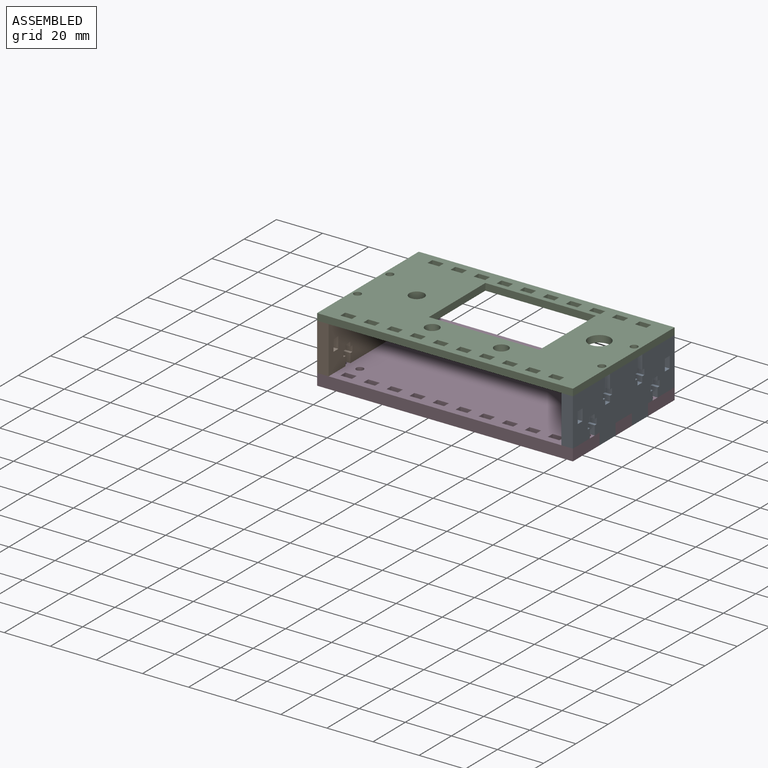
[diagram: assembled view]
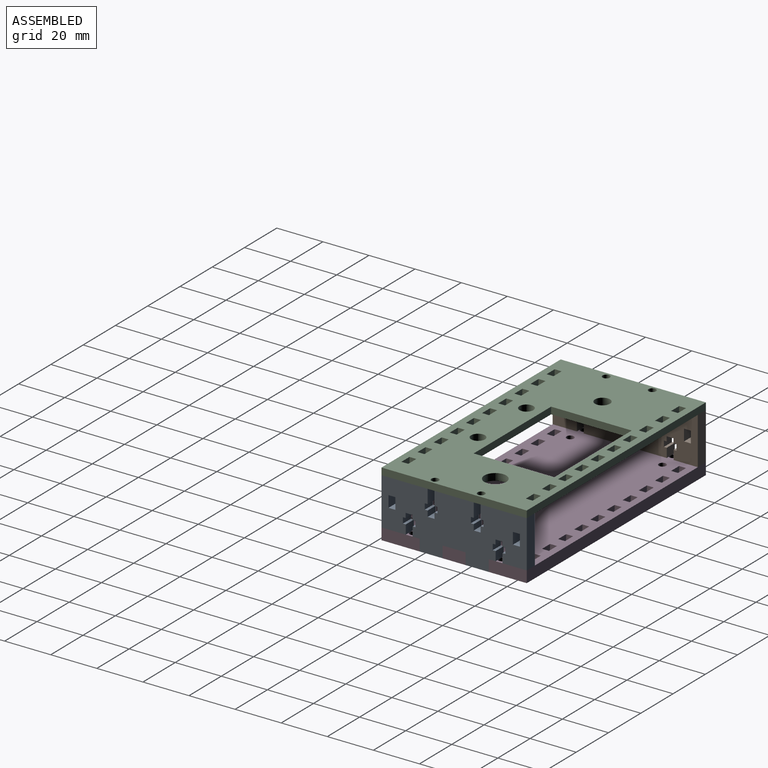
[diagram: assembled view, second angle]
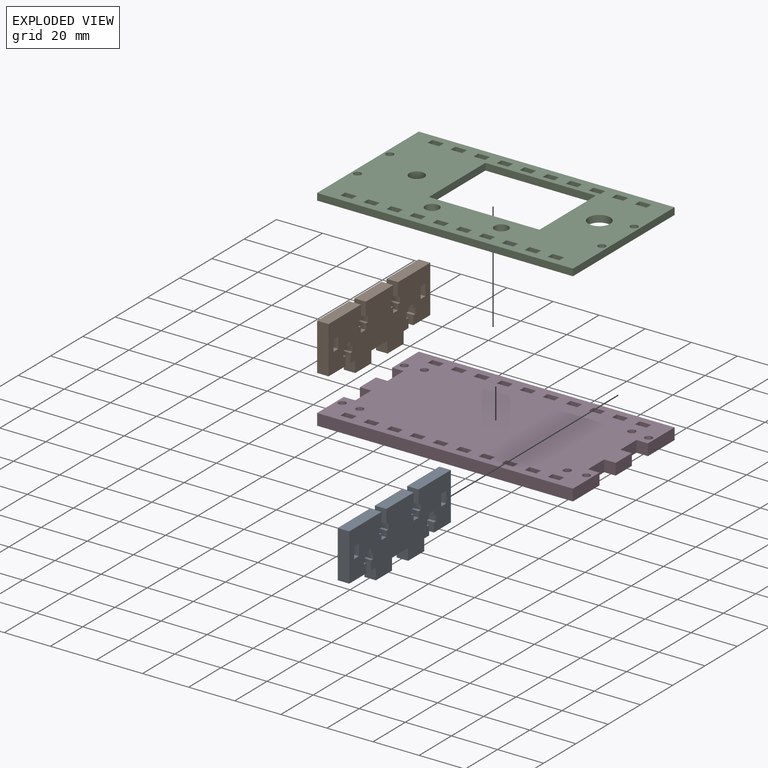
[diagram: exploded view]
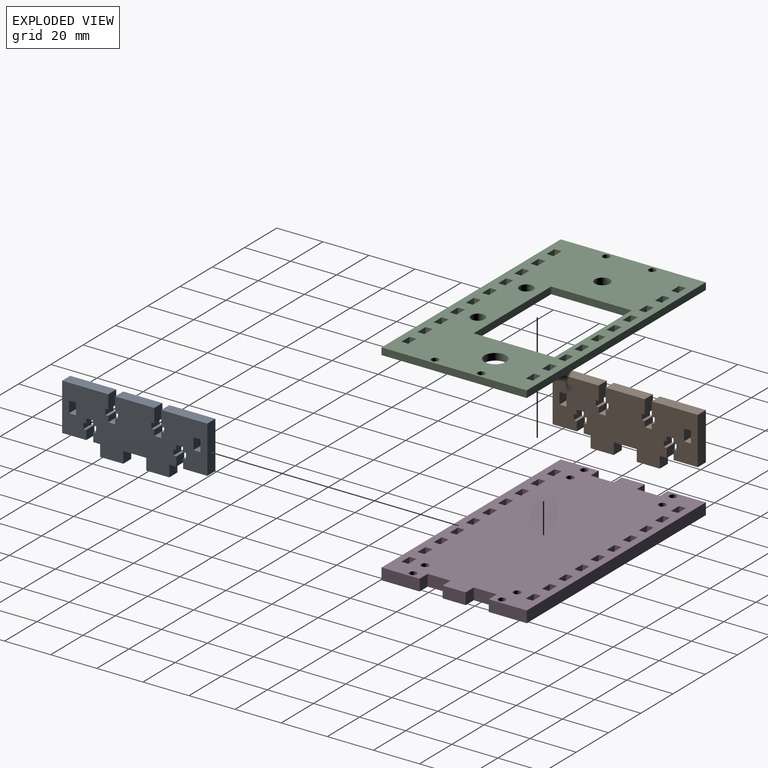
[diagram: exploded view, second angle]
ASSEMBLY  parts=4 mates=3
PART A: 70 faces, bbox 25.5x63x5 mm
  f0: plane 20.5x5mm, normal (0,1,0), area 102.5mm2, adj f1,f67,f68,f69
  f1: plane 10.5x5mm, normal (-1,0,0), area 52.5mm2, adj f0,f2,f68,f69
  f2: plane 5x4mm, normal (0,-1,0), area 20mm2, adj f1,f3,f68,f69
  f3: plane 5x1.25mm, normal (1,0,0), area 6.3mm2, adj f2,f4,f68,f69
  f4: plane 5x2.5mm, normal (0,-1,0), area 12.5mm2, adj f3,f5,f68,f69
  f5: plane 5x1.31mm, normal (-1,0,0), area 6.5mm2, adj f4,f6,f68,f69
  f6: plane 5x2mm, normal (0,-1,0), area 10mm2, adj f5,f7,f68,f69
  f7: plane 5x3mm, normal (-1,0,0), area 15mm2, adj f6,f8,f68,f69
  f8: plane 5x2mm, normal (0,1,0), area 10mm2, adj f7,f9,f68,f69
  f9: plane 5x1.19mm, normal (-1,0,0), area 6mm2, adj f8,f10,f68,f69
  f10: plane 5x2.5mm, normal (0,1,0), area 12.5mm2, adj f9,f11,f68,f69
  f11: plane 5x1.25mm, normal (1,0,0), area 6.3mm2, adj f10,f12,f68,f69
  f12: plane 5x4mm, normal (0,1,0), area 20mm2, adj f11,f13,f68,f69
  f13: plane 5x3mm, normal (-1,0,0), area 15mm2, adj f12,f14,f68,f69
  f14: plane 5x5mm, normal (0,1,0), area 25mm2, adj f13,f15,f68,f69
  f15: plane 10x5mm, normal (-1,0,0), area 50mm2, adj f14,f16,f68,f69
  f16: plane 5x5mm, normal (0,-1,0), area 25mm2, adj f15,f17,f68,f69
  f17: plane 10x5mm, normal (-1,0,0), area 50mm2, adj f16,f18,f68,f69
  f18: plane 5x5mm, normal (0,1,0), area 25mm2, adj f17,f19,f68,f69
  f19: plane 10x5mm, normal (-1,0,0), area 50mm2, adj f18,f20,f68,f69
  f20: plane 5x5mm, normal (0,-1,0), area 25mm2, adj f19,f21,f68,f69
  f21: plane 5x3mm, normal (-1,0,0), area 15mm2, adj f20,f22,f68,f69
  f22: plane 5x4mm, normal (0,-1,0), area 20mm2, adj f21,f23,f68,f69
  f23: plane 5x1.25mm, normal (1,0,0), area 6.2mm2, adj f22,f24,f68,f69
  f24: plane 5x2.5mm, normal (0,-1,0), area 12.5mm2, adj f23,f25,f68,f69
  f25: plane 5x1.31mm, normal (-1,0,0), area 6.5mm2, adj f24,f26,f68,f69
  f26: plane 5x2mm, normal (0,-1,0), area 10mm2, adj f25,f27,f68,f69
  f27: plane 5x3mm, normal (-1,0,0), area 15mm2, adj f26,f28,f68,f69
  f28: plane 5x2mm, normal (0,1,0), area 10mm2, adj f27,f29,f68,f69
  f29: plane 5x1.19mm, normal (-1,0,0), area 6mm2, adj f28,f30,f68,f69
  f30: plane 5x2.5mm, normal (0,1,0), area 12.5mm2, adj f29,f31,f68,f69
  f31: plane 5x1.25mm, normal (1,0,0), area 6.3mm2, adj f30,f32,f68,f69
  f32: plane 5x4mm, normal (0,1,0), area 20mm2, adj f31,f33,f68,f69
  f33: plane 10.5x5mm, normal (-1,0,0), area 52.5mm2, adj f32,f34,f68,f69
  f34: plane 20.5x5mm, normal (0,-1,0), area 102.5mm2, adj f33,f35,f68,f69
  f35: plane 20x5mm, normal (1,0,0), area 100mm2, adj f34,f36,f68,f69
  f36: plane 6x5mm, normal (0,1,0), area 30mm2, adj f35,f37,f68,f69
  f37: plane 5x1.25mm, normal (-1,0,0), area 6.3mm2, adj f36,f38,f68,f69
  f38: plane 5x2.5mm, normal (0,1,0), area 12.5mm2, adj f37,f39,f68,f69
  f39: plane 5x1.25mm, normal (1,0,0), area 6.3mm2, adj f38,f40,f68,f69
  f40: plane 5x2.5mm, normal (0,1,0), area 12.5mm2, adj f39,f41,f68,f69
  f41: plane 5x3mm, normal (1,0,0), area 15mm2, adj f40,f42,f68,f69
  f42: plane 5x2.5mm, normal (0,-1,0), area 12.5mm2, adj f41,f43,f68,f69
  f43: plane 5x1.25mm, normal (1,0,0), area 6.3mm2, adj f42,f44,f68,f69
  f44: plane 5x2.5mm, normal (0,-1,0), area 12.5mm2, adj f43,f45,f68,f69
  f45: plane 5x1.25mm, normal (-1,0,0), area 6.3mm2, adj f44,f46,f68,f69
  f46: plane 6x5mm, normal (0,-1,0), area 30mm2, adj f45,f47,f68,f69
  f47: plane 17x5mm, normal (1,0,0), area 85mm2, adj f46,f48,f68,f69
  f48: plane 6x5mm, normal (0,1,0), area 30mm2, adj f47,f49,f68,f69
  f49: plane 5x1.25mm, normal (-1,0,0), area 6.3mm2, adj f48,f50,f68,f69
  f50: plane 5x2.5mm, normal (0,1,0), area 12.5mm2, adj f49,f51,f68,f69
  f51: plane 5x1.25mm, normal (1,0,0), area 6.3mm2, adj f50,f52,f68,f69
  f52: plane 5x2.5mm, normal (0,1,0), area 12.5mm2, adj f51,f53,f68,f69
  f53: plane 5x3mm, normal (1,0,0), area 15mm2, adj f52,f54,f68,f69
  f54: plane 5x2.5mm, normal (0,-1,0), area 12.5mm2, adj f53,f55,f68,f69
  f55: plane 5x1.25mm, normal (1,0,0), area 6.3mm2, adj f54,f56,f68,f69
  f56: plane 5x2.5mm, normal (0,-1,0), area 12.5mm2, adj f55,f57,f68,f69
  f57: plane 5x1.25mm, normal (-1,0,0), area 6.3mm2, adj f56,f58,f68,f69
  f58: plane 6x5mm, normal (0,-1,0), area 30mm2, adj f57,f67,f68,f69
  f59: plane 5x3mm, normal (1,0,0), area 15mm2, adj f60,f65,f68,f69
  f60: plane 5x5mm, normal (0,-1,0), area 25mm2, adj f59,f61,f68,f69
  f61: plane 5x3mm, normal (-1,0,0), area 15mm2, adj f60,f65,f68,f69
  f62: plane 5x3mm, normal (1,0,0), area 15mm2, adj f63,f66,f68,f69
  f63: plane 5x5mm, normal (0,-1,0), area 25mm2, adj f62,f64,f68,f69
  f64: plane 5x3mm, normal (-1,0,0), area 15mm2, adj f63,f66,f68,f69
  f65: plane 5x5mm, normal (0,1,0), area 25mm2, adj f59,f61,f68,f69
  f66: plane 5x5mm, normal (0,1,0), area 25mm2, adj f62,f64,f68,f69
  f67: plane 20x5mm, normal (1,0,0), area 100mm2, adj f0,f58,f68,f69
  f68: plane 63x25.5mm, normal (0,0,1), area 1219.5mm2, adj f0,f1,f2,f3,f4,f5,f6,f7
  f69: plane 63x25.5mm, normal (0,0,-1), area 1219.5mm2, adj f0,f1,f2,f3,f4,f5,f6,f7
PART B: same geometry as A
PART C: 98 faces, bbox 111x63x3 mm
  f0: plane 3x3mm, normal (1,0,0), area 9mm2, adj f1,f66,f96,f97
  f1: plane 5x3mm, normal (0,-1,0), area 15mm2, adj f0,f2,f96,f97
  f2: plane 3x3mm, normal (-1,0,0), area 9mm2, adj f1,f66,f96,f97
  f3: plane 3x3mm, normal (1,0,0), area 9mm2, adj f4,f67,f96,f97
  f4: plane 5x3mm, normal (0,-1,0), area 15mm2, adj f3,f5,f96,f97
  f5: plane 3x3mm, normal (-1,0,0), area 9mm2, adj f4,f67,f96,f97
  f6: plane 3x3mm, normal (1,0,0), area 9mm2, adj f7,f68,f96,f97
  f7: plane 5x3mm, normal (0,-1,0), area 15mm2, adj f6,f8,f96,f97
  f8: plane 3x3mm, normal (-1,0,0), area 9mm2, adj f7,f68,f96,f97
  f9: plane 3x3mm, normal (1,0,0), area 9mm2, adj f10,f69,f96,f97
  f10: plane 5x3mm, normal (0,-1,0), area 15mm2, adj f9,f11,f96,f97
  f11: plane 3x3mm, normal (-1,0,0), area 9mm2, adj f10,f69,f96,f97
  f12: plane 3x3mm, normal (1,0,0), area 9mm2, adj f13,f70,f96,f97
  f13: plane 5x3mm, normal (0,-1,0), area 15mm2, adj f12,f14,f96,f97
  f14: plane 3x3mm, normal (-1,0,0), area 9mm2, adj f13,f70,f96,f97
  f15: plane 3x3mm, normal (1,0,0), area 9mm2, adj f16,f71,f96,f97
  f16: plane 5x3mm, normal (0,-1,0), area 15mm2, adj f15,f17,f96,f97
  f17: plane 3x3mm, normal (-1,0,0), area 9mm2, adj f16,f71,f96,f97
  f18: plane 3x3mm, normal (1,0,0), area 9mm2, adj f19,f72,f96,f97
  f19: plane 5x3mm, normal (0,-1,0), area 15mm2, adj f18,f20,f96,f97
  f20: plane 3x3mm, normal (-1,0,0), area 9mm2, adj f19,f72,f96,f97
  f21: plane 3x3mm, normal (1,0,0), area 9mm2, adj f22,f73,f96,f97
  f22: plane 5x3mm, normal (0,-1,0), area 15mm2, adj f21,f23,f96,f97
  f23: plane 3x3mm, normal (-1,0,0), area 9mm2, adj f22,f73,f96,f97
  f24: plane 3x3mm, normal (1,0,0), area 9mm2, adj f25,f74,f96,f97
  f25: plane 5x3mm, normal (0,-1,0), area 15mm2, adj f24,f26,f96,f97
  f26: plane 3x3mm, normal (-1,0,0), area 9mm2, adj f25,f74,f96,f97
  f27: plane 3x3mm, normal (1,0,0), area 9mm2, adj f28,f75,f96,f97
  f28: plane 5x3mm, normal (0,-1,0), area 15mm2, adj f27,f29,f96,f97
  f29: plane 3x3mm, normal (-1,0,0), area 9mm2, adj f28,f75,f96,f97
  f30: plane 3x3mm, normal (1,0,0), area 9mm2, adj f31,f76,f96,f97
  f31: plane 5x3mm, normal (0,-1,0), area 15mm2, adj f30,f32,f96,f97
  f32: plane 3x3mm, normal (-1,0,0), area 9mm2, adj f31,f76,f96,f97
  f33: plane 3x3mm, normal (1,0,0), area 9mm2, adj f34,f77,f96,f97
  f34: plane 5x3mm, normal (0,-1,0), area 15mm2, adj f33,f35,f96,f97
  f35: plane 3x3mm, normal (-1,0,0), area 9mm2, adj f34,f77,f96,f97
  f36: plane 3x3mm, normal (1,0,0), area 9mm2, adj f37,f78,f96,f97
  f37: plane 5x3mm, normal (0,-1,0), area 15mm2, adj f36,f38,f96,f97
  f38: plane 3x3mm, normal (-1,0,0), area 9mm2, adj f37,f78,f96,f97
  f39: plane 3x3mm, normal (1,0,0), area 9mm2, adj f40,f79,f96,f97
  f40: plane 5x3mm, normal (0,-1,0), area 15mm2, adj f39,f41,f96,f97
  f41: plane 3x3mm, normal (-1,0,0), area 9mm2, adj f40,f79,f96,f97
  f42: plane 3x3mm, normal (1,0,0), area 9mm2, adj f43,f80,f96,f97
  f43: plane 5x3mm, normal (0,-1,0), area 15mm2, adj f42,f44,f96,f97
  f44: plane 3x3mm, normal (-1,0,0), area 9mm2, adj f43,f80,f96,f97
  f45: plane 3x3mm, normal (1,0,0), area 9mm2, adj f46,f81,f96,f97
  f46: plane 5x3mm, normal (0,-1,0), area 15mm2, adj f45,f47,f96,f97
  f47: plane 3x3mm, normal (-1,0,0), area 9mm2, adj f46,f81,f96,f97
  f48: plane 3x3mm, normal (1,0,0), area 9mm2, adj f49,f82,f96,f97
  f49: plane 5x3mm, normal (0,-1,0), area 15mm2, adj f48,f50,f96,f97
  f50: plane 3x3mm, normal (-1,0,0), area 9mm2, adj f49,f82,f96,f97
  f51: plane 3x3mm, normal (1,0,0), area 9mm2, adj f52,f83,f96,f97
  f52: plane 5x3mm, normal (0,-1,0), area 15mm2, adj f51,f53,f96,f97
  f53: plane 3x3mm, normal (-1,0,0), area 9mm2, adj f52,f83,f96,f97
  f54: plane 111x3mm, normal (0,1,0), area 333mm2, adj f55,f87,f96,f97
  f55: plane 63x3mm, normal (-1,0,0), area 189mm2, adj f54,f56,f96,f97
  f56: plane 111x3mm, normal (0,-1,0), area 333mm2, adj f55,f87,f96,f97
  f57: plane 3x3mm, normal (1,0,0), area 9mm2, adj f58,f88,f96,f97
  f58: plane 5x3mm, normal (0,-1,0), area 15mm2, adj f57,f59,f96,f97
  f59: plane 3x3mm, normal (-1,0,0), area 9mm2, adj f58,f88,f96,f97
  f60: plane 3x3mm, normal (1,0,0), area 9mm2, adj f61,f89,f96,f97
  f61: plane 5x3mm, normal (0,-1,0), area 15mm2, adj f60,f62,f96,f97
  f62: plane 3x3mm, normal (-1,0,0), area 9mm2, adj f61,f89,f96,f97
  f63: plane 48x3mm, normal (0,1,0), area 144mm2, adj f64,f94,f96,f97
  f64: plane 35x3mm, normal (1,0,0), area 105mm2, adj f63,f65,f96,f97
  f65: plane 48x3mm, normal (0,-1,0), area 144mm2, adj f64,f94,f96,f97
  f66: plane 5x3mm, normal (0,1,0), area 15mm2, adj f0,f2,f96,f97
  f67: plane 5x3mm, normal (0,1,0), area 15mm2, adj f3,f5,f96,f97
  f68: plane 5x3mm, normal (0,1,0), area 15mm2, adj f6,f8,f96,f97
  f69: plane 5x3mm, normal (0,1,0), area 15mm2, adj f9,f11,f96,f97
  f70: plane 5x3mm, normal (0,1,0), area 15mm2, adj f12,f14,f96,f97
  f71: plane 5x3mm, normal (0,1,0), area 15mm2, adj f15,f17,f96,f97
  f72: plane 5x3mm, normal (0,1,0), area 15mm2, adj f18,f20,f96,f97
  f73: plane 5x3mm, normal (0,1,0), area 15mm2, adj f21,f23,f96,f97
  f74: plane 5x3mm, normal (0,1,0), area 15mm2, adj f24,f26,f96,f97
  f75: plane 5x3mm, normal (0,1,0), area 15mm2, adj f27,f29,f96,f97
  f76: plane 5x3mm, normal (0,1,0), area 15mm2, adj f30,f32,f96,f97
  f77: plane 5x3mm, normal (0,1,0), area 15mm2, adj f33,f35,f96,f97
  f78: plane 5x3mm, normal (0,1,0), area 15mm2, adj f36,f38,f96,f97
  f79: plane 5x3mm, normal (0,1,0), area 15mm2, adj f39,f41,f96,f97
  f80: plane 5x3mm, normal (0,1,0), area 15mm2, adj f42,f44,f96,f97
  f81: plane 5x3mm, normal (0,1,0), area 15mm2, adj f45,f47,f96,f97
  f82: plane 5x3mm, normal (0,1,0), area 15mm2, adj f48,f50,f96,f97
  f83: plane 5x3mm, normal (0,1,0), area 15mm2, adj f51,f53,f96,f97
  f84: cylinder r=3mm len=6mm, axis (0,0,-1), area 56.5mm2, adj f96,f97
  f85: cylinder r=3mm len=6mm, axis (0,0,-1), area 56.5mm2, adj f96,f97
  f86: cylinder r=1.6mm len=3.2mm, axis (0,0,-1), area 30.2mm2, adj f96,f97
  f87: plane 63x3mm, normal (1,0,0), area 189mm2, adj f54,f56,f96,f97
  f88: plane 5x3mm, normal (0,1,0), area 15mm2, adj f57,f59,f96,f97
  f89: plane 5x3mm, normal (0,1,0), area 15mm2, adj f60,f62,f96,f97
  f90: cylinder r=1.6mm len=3.2mm, axis (0,0,-1), area 30.2mm2, adj f96,f97
  f91: cylinder r=1.6mm len=3.2mm, axis (0,0,-1), area 30.2mm2, adj f96,f97
  f92: cylinder r=1.6mm len=3.2mm, axis (0,0,-1), area 30.2mm2, adj f96,f97
  f93: cylinder r=4.75mm len=9.5mm, axis (0,0,-1), area 89.5mm2, adj f96,f97
  f94: plane 35x3mm, normal (-1,0,0), area 105mm2, adj f63,f65,f96,f97
  f95: cylinder r=3.25mm len=6.5mm, axis (0,0,-1), area 61.3mm2, adj f96,f97
  f96: plane 111x63mm, normal (0,0,1), area 4820.2mm2, adj f0,f1,f2,f3,f4,f5,f6,f7
  f97: plane 111x63mm, normal (0,0,-1), area 4820.2mm2, adj f0,f1,f2,f3,f4,f5,f6,f7
PART D: 110 faces, bbox 111x63x5 mm
  f0: plane 5x3mm, normal (1,0,0), area 15mm2, adj f1,f107,f108,f109
  f1: plane 5x5mm, normal (0,-1,0), area 25mm2, adj f0,f2,f108,f109
  f2: plane 5x3mm, normal (-1,0,0), area 15mm2, adj f1,f107,f108,f109
  f3: plane 5x3mm, normal (1,0,0), area 15mm2, adj f4,f79,f108,f109
  f4: plane 5x5mm, normal (0,-1,0), area 25mm2, adj f3,f5,f108,f109
  f5: plane 5x3mm, normal (-1,0,0), area 15mm2, adj f4,f79,f108,f109
  f6: plane 5x3mm, normal (1,0,0), area 15mm2, adj f7,f80,f108,f109
  f7: plane 5x5mm, normal (0,-1,0), area 25mm2, adj f6,f8,f108,f109
  f8: plane 5x3mm, normal (-1,0,0), area 15mm2, adj f7,f80,f108,f109
  f9: plane 5x3mm, normal (1,0,0), area 15mm2, adj f10,f81,f108,f109
  f10: plane 5x5mm, normal (0,-1,0), area 25mm2, adj f9,f11,f108,f109
  f11: plane 5x3mm, normal (-1,0,0), area 15mm2, adj f10,f81,f108,f109
  f12: plane 5x3mm, normal (1,0,0), area 15mm2, adj f13,f82,f108,f109
  f13: plane 5x5mm, normal (0,-1,0), area 25mm2, adj f12,f14,f108,f109
  f14: plane 5x3mm, normal (-1,0,0), area 15mm2, adj f13,f82,f108,f109
  f15: plane 5x3mm, normal (1,0,0), area 15mm2, adj f16,f83,f108,f109
  f16: plane 5x5mm, normal (0,-1,0), area 25mm2, adj f15,f17,f108,f109
  f17: plane 5x3mm, normal (-1,0,0), area 15mm2, adj f16,f83,f108,f109
  f18: plane 5x3mm, normal (1,0,0), area 15mm2, adj f19,f84,f108,f109
  f19: plane 5x5mm, normal (0,-1,0), area 25mm2, adj f18,f20,f108,f109
  f20: plane 5x3mm, normal (-1,0,0), area 15mm2, adj f19,f84,f108,f109
  f21: plane 5x3mm, normal (1,0,0), area 15mm2, adj f22,f85,f108,f109
  f22: plane 5x5mm, normal (0,-1,0), area 25mm2, adj f21,f23,f108,f109
  f23: plane 5x3mm, normal (-1,0,0), area 15mm2, adj f22,f85,f108,f109
  f24: plane 5x3mm, normal (1,0,0), area 15mm2, adj f25,f86,f108,f109
  f25: plane 5x5mm, normal (0,-1,0), area 25mm2, adj f24,f26,f108,f109
  f26: plane 5x3mm, normal (-1,0,0), area 15mm2, adj f25,f86,f108,f109
  f27: plane 5x3mm, normal (1,0,0), area 15mm2, adj f28,f88,f108,f109
  f28: plane 5x5mm, normal (0,-1,0), area 25mm2, adj f27,f29,f108,f109
  f29: plane 5x3mm, normal (-1,0,0), area 15mm2, adj f28,f88,f108,f109
  f30: plane 5x3mm, normal (1,0,0), area 15mm2, adj f31,f89,f108,f109
  f31: plane 5x5mm, normal (0,-1,0), area 25mm2, adj f30,f32,f108,f109
  f32: plane 5x3mm, normal (-1,0,0), area 15mm2, adj f31,f89,f108,f109
  f33: plane 5x3mm, normal (1,0,0), area 15mm2, adj f34,f90,f108,f109
  f34: plane 5x5mm, normal (0,-1,0), area 25mm2, adj f33,f35,f108,f109
  f35: plane 5x3mm, normal (-1,0,0), area 15mm2, adj f34,f90,f108,f109
  f36: plane 5x3mm, normal (1,0,0), area 15mm2, adj f37,f91,f108,f109
  f37: plane 5x5mm, normal (0,-1,0), area 25mm2, adj f36,f38,f108,f109
  f38: plane 5x3mm, normal (-1,0,0), area 15mm2, adj f37,f91,f108,f109
  f39: plane 5x3mm, normal (1,0,0), area 15mm2, adj f40,f92,f108,f109
  f40: plane 5x5mm, normal (0,-1,0), area 25mm2, adj f39,f41,f108,f109
  f41: plane 5x3mm, normal (-1,0,0), area 15mm2, adj f40,f92,f108,f109
  f42: plane 5x3mm, normal (1,0,0), area 15mm2, adj f43,f93,f108,f109
  f43: plane 5x5mm, normal (0,-1,0), area 25mm2, adj f42,f44,f108,f109
  f44: plane 5x3mm, normal (-1,0,0), area 15mm2, adj f43,f93,f108,f109
  f45: plane 5x3mm, normal (1,0,0), area 15mm2, adj f46,f94,f108,f109
  f46: plane 5x5mm, normal (0,-1,0), area 25mm2, adj f45,f47,f108,f109
  f47: plane 5x3mm, normal (-1,0,0), area 15mm2, adj f46,f94,f108,f109
  f48: plane 5x3mm, normal (1,0,0), area 15mm2, adj f49,f95,f108,f109
  f49: plane 5x5mm, normal (0,-1,0), area 25mm2, adj f48,f50,f108,f109
  f50: plane 5x3mm, normal (-1,0,0), area 15mm2, adj f49,f95,f108,f109
  f51: plane 5x3mm, normal (1,0,0), area 15mm2, adj f52,f96,f108,f109
  f52: plane 5x5mm, normal (0,-1,0), area 25mm2, adj f51,f53,f108,f109
  f53: plane 5x3mm, normal (-1,0,0), area 15mm2, adj f52,f96,f108,f109
  f54: plane 5x3mm, normal (1,0,0), area 15mm2, adj f55,f97,f108,f109
  f55: plane 5x5mm, normal (0,-1,0), area 25mm2, adj f54,f56,f108,f109
  f56: plane 5x3mm, normal (-1,0,0), area 15mm2, adj f55,f97,f108,f109
  f57: plane 5x3mm, normal (1,0,0), area 15mm2, adj f58,f99,f108,f109
  f58: plane 5x5mm, normal (0,-1,0), area 25mm2, adj f57,f59,f108,f109
  f59: plane 5x3mm, normal (-1,0,0), area 15mm2, adj f58,f99,f108,f109
  f60: plane 5x5mm, normal (0,-1,0), area 25mm2, adj f61,f101,f108,f109
  f61: plane 16.5x5mm, normal (1,0,0), area 82.5mm2, adj f60,f62,f108,f109
  f62: plane 111x5mm, normal (0,1,0), area 555mm2, adj f61,f63,f108,f109
  f63: plane 16.5x5mm, normal (-1,0,0), area 82.5mm2, adj f62,f64,f108,f109
  f64: plane 5x5mm, normal (0,-1,0), area 25mm2, adj f63,f65,f108,f109
  f65: plane 10x5mm, normal (-1,0,0), area 50mm2, adj f64,f66,f108,f109
  f66: plane 5x5mm, normal (0,1,0), area 25mm2, adj f65,f67,f108,f109
  f67: plane 10x5mm, normal (-1,0,0), area 50mm2, adj f66,f68,f108,f109
  f68: plane 5x5mm, normal (0,-1,0), area 25mm2, adj f67,f69,f108,f109
  f69: plane 10x5mm, normal (-1,0,0), area 50mm2, adj f68,f70,f108,f109
  f70: plane 5x5mm, normal (0,1,0), area 25mm2, adj f69,f71,f108,f109
  f71: plane 16.5x5mm, normal (-1,0,0), area 82.5mm2, adj f70,f72,f108,f109
  f72: plane 111x5mm, normal (0,-1,0), area 555mm2, adj f71,f73,f108,f109
  f73: plane 16.5x5mm, normal (1,0,0), area 82.5mm2, adj f72,f74,f108,f109
  f74: plane 5x5mm, normal (0,1,0), area 25mm2, adj f73,f75,f108,f109
  f75: plane 10x5mm, normal (1,0,0), area 50mm2, adj f74,f76,f108,f109
  f76: plane 5x5mm, normal (0,-1,0), area 25mm2, adj f75,f77,f108,f109
  f77: plane 10x5mm, normal (1,0,0), area 50mm2, adj f76,f78,f108,f109
  f78: plane 5x5mm, normal (0,1,0), area 25mm2, adj f77,f101,f108,f109
  f79: plane 5x5mm, normal (0,1,0), area 25mm2, adj f3,f5,f108,f109
  f80: plane 5x5mm, normal (0,1,0), area 25mm2, adj f6,f8,f108,f109
  f81: plane 5x5mm, normal (0,1,0), area 25mm2, adj f9,f11,f108,f109
  f82: plane 5x5mm, normal (0,1,0), area 25mm2, adj f12,f14,f108,f109
  f83: plane 5x5mm, normal (0,1,0), area 25mm2, adj f15,f17,f108,f109
  f84: plane 5x5mm, normal (0,1,0), area 25mm2, adj f18,f20,f108,f109
  f85: plane 5x5mm, normal (0,1,0), area 25mm2, adj f21,f23,f108,f109
  f86: plane 5x5mm, normal (0,1,0), area 25mm2, adj f24,f26,f108,f109
  f87: cylinder r=1.6mm len=5mm, axis (0,0,-1), area 50.3mm2, adj f108,f109
  f88: plane 5x5mm, normal (0,1,0), area 25mm2, adj f27,f29,f108,f109
  f89: plane 5x5mm, normal (0,1,0), area 25mm2, adj f30,f32,f108,f109
  f90: plane 5x5mm, normal (0,1,0), area 25mm2, adj f33,f35,f108,f109
  f91: plane 5x5mm, normal (0,1,0), area 25mm2, adj f36,f38,f108,f109
  f92: plane 5x5mm, normal (0,1,0), area 25mm2, adj f39,f41,f108,f109
  f93: plane 5x5mm, normal (0,1,0), area 25mm2, adj f42,f44,f108,f109
  f94: plane 5x5mm, normal (0,1,0), area 25mm2, adj f45,f47,f108,f109
  f95: plane 5x5mm, normal (0,1,0), area 25mm2, adj f48,f50,f108,f109
  f96: plane 5x5mm, normal (0,1,0), area 25mm2, adj f51,f53,f108,f109
  f97: plane 5x5mm, normal (0,1,0), area 25mm2, adj f54,f56,f108,f109
  f98: cylinder r=1.6mm len=5mm, axis (0,0,-1), area 50.3mm2, adj f108,f109
  f99: plane 5x5mm, normal (0,1,0), area 25mm2, adj f57,f59,f108,f109
  f100: cylinder r=1.6mm len=5mm, axis (0,0,-1), area 50.3mm2, adj f108,f109
  f101: plane 10x5mm, normal (1,0,0), area 50mm2, adj f60,f78,f108,f109
  f102: cylinder r=1.6mm len=5mm, axis (0,0,-1), area 50.3mm2, adj f108,f109
  f103: cylinder r=1.6mm len=5mm, axis (0,0,-1), area 50.3mm2, adj f108,f109
  f104: cylinder r=1.6mm len=5mm, axis (0,0,-1), area 50.3mm2, adj f108,f109
  f105: cylinder r=1.6mm len=5mm, axis (0,0,-1), area 50.3mm2, adj f108,f109
  f106: cylinder r=1.6mm len=5mm, axis (0,0,-1), area 50.3mm2, adj f108,f109
  f107: plane 5x5mm, normal (0,1,0), area 25mm2, adj f0,f2,f108,f109
  f108: plane 111x63mm, normal (0,0,1), area 6428.7mm2, adj f0,f1,f2,f3,f4,f5,f6,f7
  f109: plane 111x63mm, normal (0,0,-1), area 6428.7mm2, adj f0,f1,f2,f3,f4,f5,f6,f7
PLACE A rot(axis=(0,-1,0),90deg) t=(104.71,2.83,6.38)mm
PLACE B rot(axis=(0,-1,0),90deg) t=(-1.29,2.83,6.38)mm
PLACE C rot(axis=(0,0.99,0.11),0deg) t=(-6.29,2.83,31.88)mm
PLACE D t=(-6.29,2.83,6.38)mm fixed
MATE fastened D.f108 <-> A.f17  axis (0,0,1) through (104.71,34.33,11.38)mm
MATE fastened A.f47 <-> C.f97  axis (0,0,1) through (104.71,34.33,31.88)mm
MATE fastened D.f108 <-> B.f17  axis (0,0,1) through (-6.29,34.33,11.38)mm
